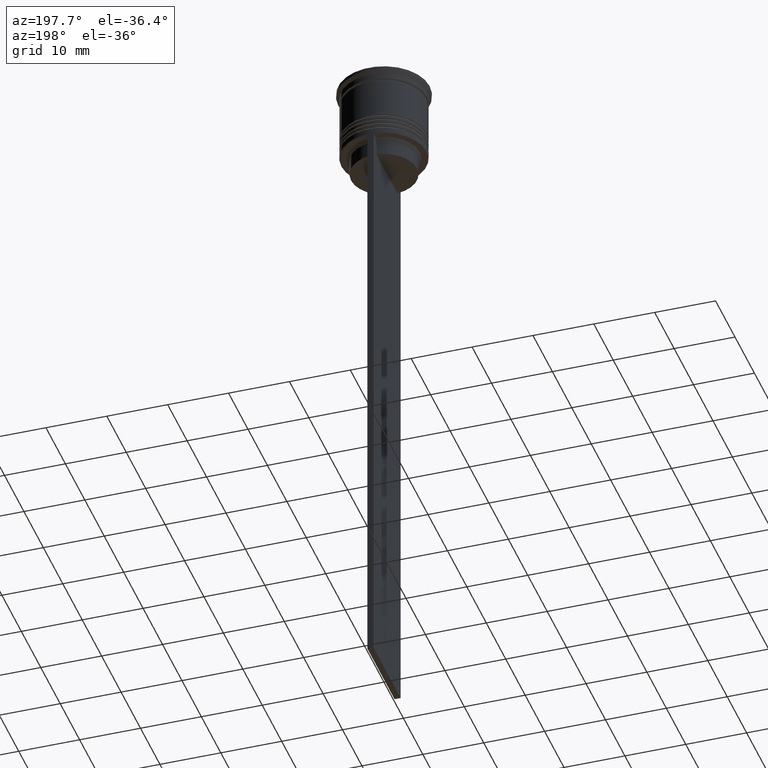
[diagram: clean part render]
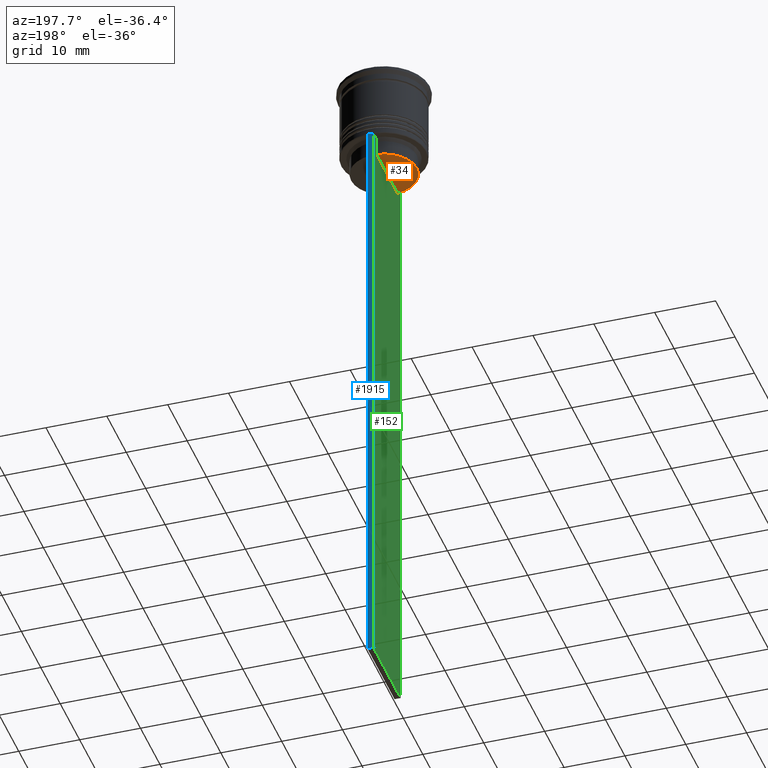
[diagram: same view with three faces highlighted in distinct colors, each labeled with its STEP entity id]
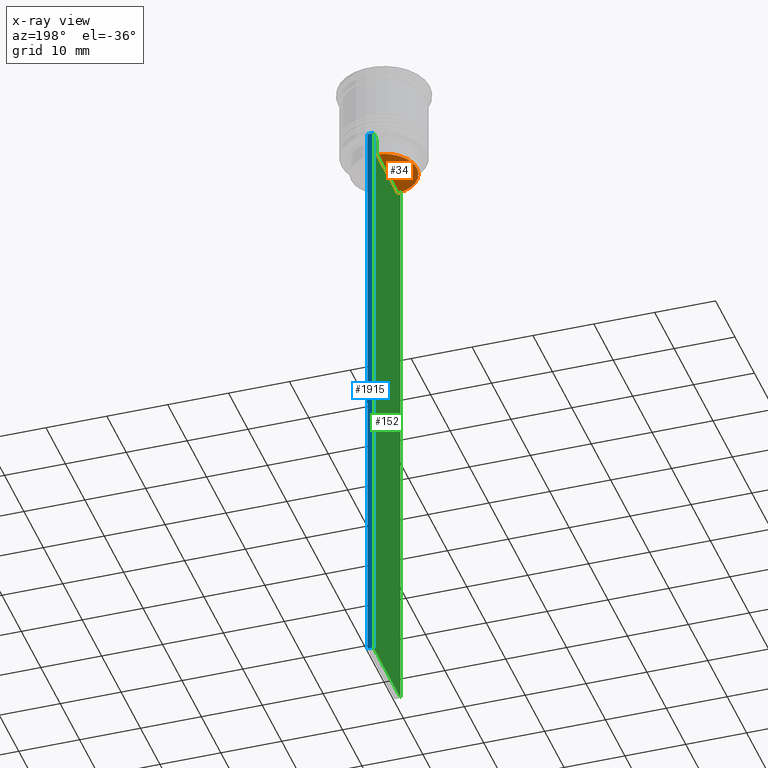
[diagram: x-ray of the same camera — body ghosted, the three highlighted faces saturated]
A machine part, auxiliary view with three faces highlighted in distinct colors.
The next image is the same camera in x-ray (body ghosted, the three faces saturated) — at least one of them is partly hidden behind the body in this view.
Their STEP definitions:

[orange] entity #34 — the highlighted planar face has unit normal (0, -0, 1).
#34 = ADVANCED_FACE ( 'NONE', ( #1687 ), #1894, .F. ) ;
#57 = VECTOR ( 'NONE', #350, 1000.000000000000000 ) ;
#177 = CIRCLE ( 'NONE', #2020, 5.400000000000003908 ) ;
#350 = DIRECTION ( 'NONE',  ( 0.000000000000000000, -1.000000000000000000, 0.000000000000000000 ) ) ;
#465 = DIRECTION ( 'NONE',  ( 1.000000000000000000, 0.000000000000000000, 0.000000000000000000 ) ) ;
#481 = DIRECTION ( 'NONE',  ( 0.000000000000000000, -0.000000000000000000, 1.000000000000000000 ) ) ;
#557 = ORIENTED_EDGE ( 'NONE', *, *, #2341, .T. ) ;
#608 = CARTESIAN_POINT ( 'NONE',  ( 0.000000000000000000, 0.000000000000000000, -15.50000000000000000 ) ) ;
#652 = VERTEX_POINT ( 'NONE', #1849 ) ;
#770 = CARTESIAN_POINT ( 'NONE',  ( -0.5000000000000000000, 5.400000000000003908, -15.50000000000000000 ) ) ;
#970 = EDGE_LOOP ( 'NONE', ( #1514, #557 ) ) ;
#1022 = CARTESIAN_POINT ( 'NONE',  ( 0.000000000000000000, 5.400000000000003908, -15.50000000000000000 ) ) ;
#1046 = DIRECTION ( 'NONE',  ( 1.000000000000000000, 0.000000000000000000, 0.000000000000000000 ) ) ;
#1514 = ORIENTED_EDGE ( 'NONE', *, *, #2415, .F. ) ;
#1687 = FACE_OUTER_BOUND ( 'NONE', #970, .T. ) ;
#1849 = CARTESIAN_POINT ( 'NONE',  ( -0.5000000000000000000, -5.376802023508029826, -15.50000000000000000 ) ) ;
#1894 = PLANE ( 'NONE',  #1962 ) ;
#1962 = AXIS2_PLACEMENT_3D ( 'NONE', #1022, #481, #1046 ) ;
#2020 = AXIS2_PLACEMENT_3D ( 'NONE', #608, #2333, #465 ) ;
#2142 = CARTESIAN_POINT ( 'NONE',  ( -0.5000000000000000000, 5.376802023508029826, -15.50000000000000000 ) ) ;
#2333 = DIRECTION ( 'NONE',  ( -0.000000000000000000, -0.000000000000000000, 1.000000000000000000 ) ) ;
#2341 = EDGE_CURVE ( 'NONE', #2429, #652, #2492, .T. ) ;
#2415 = EDGE_CURVE ( 'NONE', #2429, #652, #177, .T. ) ;
#2429 = VERTEX_POINT ( 'NONE', #2142 ) ;
#2492 = LINE ( 'NONE', #770, #57 ) ;

[blue] entity #1915 — the highlighted planar face has unit normal (0, -1, -0).
#2 = DIRECTION ( 'NONE',  ( 0.000000000000000000, -1.000000000000000000, -0.000000000000000000 ) ) ;
#114 = CARTESIAN_POINT ( 'NONE',  ( -0.5000000000000000000, 7.000000000000002665, -112.5000000000000000 ) ) ;
#182 = FACE_OUTER_BOUND ( 'NONE', #1377, .T. ) ;
#236 = VECTOR ( 'NONE', #1056, 1000.000000000000000 ) ;
#452 = EDGE_CURVE ( 'NONE', #2316, #495, #2380, .T. ) ;
#495 = VERTEX_POINT ( 'NONE', #507 ) ;
#507 = CARTESIAN_POINT ( 'NONE',  ( 0.5000000000000000000, 7.000000000000002665, -112.5000000000000000 ) ) ;
#512 = VERTEX_POINT ( 'NONE', #114 ) ;
#716 = EDGE_CURVE ( 'NONE', #495, #512, #1437, .T. ) ;
#739 = PLANE ( 'NONE',  #1769 ) ;
#755 = VECTOR ( 'NONE', #1800, 1000.000000000000000 ) ;
#805 = DIRECTION ( 'NONE',  ( 1.000000000000000000, 0.000000000000000000, 0.000000000000000000 ) ) ;
#840 = ORIENTED_EDGE ( 'NONE', *, *, #452, .T. ) ;
#951 = CARTESIAN_POINT ( 'NONE',  ( 0.5000000000000000000, 7.000000000000002665, 1.535668847618198329 ) ) ;
#1056 = DIRECTION ( 'NONE',  ( -1.000000000000000000, 0.000000000000000000, 0.000000000000000000 ) ) ;
#1156 = CARTESIAN_POINT ( 'NONE',  ( -0.5000000000000000000, 7.000000000000002665, 1.535668847618198329 ) ) ;
#1160 = LINE ( 'NONE', #1953, #1208 ) ;
#1208 = VECTOR ( 'NONE', #805, 1000.000000000000000 ) ;
#1321 = LINE ( 'NONE', #1156, #1718 ) ;
#1377 = EDGE_LOOP ( 'NONE', ( #2058, #1559, #840, #1896 ) ) ;
#1437 = LINE ( 'NONE', #2209, #236 ) ;
#1510 = CARTESIAN_POINT ( 'NONE',  ( 0.5000000000000000000, 7.000000000000002665, -12.50000000000000000 ) ) ;
#1552 = EDGE_CURVE ( 'NONE', #2111, #2316, #1160, .T. ) ;
#1559 = ORIENTED_EDGE ( 'NONE', *, *, #1552, .T. ) ;
#1590 = CARTESIAN_POINT ( 'NONE',  ( -0.5000000000000000000, 7.000000000000002665, -12.50000000000000000 ) ) ;
#1718 = VECTOR ( 'NONE', #2109, 1000.000000000000000 ) ;
#1722 = DIRECTION ( 'NONE',  ( 0.000000000000000000, 0.000000000000000000, -1.000000000000000000 ) ) ;
#1769 = AXIS2_PLACEMENT_3D ( 'NONE', #951, #2, #1722 ) ;
#1800 = DIRECTION ( 'NONE',  ( 0.000000000000000000, 0.000000000000000000, -1.000000000000000000 ) ) ;
#1876 = EDGE_CURVE ( 'NONE', #2111, #512, #1321, .T. ) ;
#1896 = ORIENTED_EDGE ( 'NONE', *, *, #716, .T. ) ;
#1915 = ADVANCED_FACE ( 'NONE', ( #182 ), #739, .F. ) ;
#1953 = CARTESIAN_POINT ( 'NONE',  ( 0.5000000000000000000, 7.000000000000002665, -12.50000000000000000 ) ) ;
#1996 = CARTESIAN_POINT ( 'NONE',  ( 0.5000000000000000000, 7.000000000000002665, 1.535668847618198329 ) ) ;
#2058 = ORIENTED_EDGE ( 'NONE', *, *, #1876, .F. ) ;
#2109 = DIRECTION ( 'NONE',  ( 0.000000000000000000, 0.000000000000000000, -1.000000000000000000 ) ) ;
#2111 = VERTEX_POINT ( 'NONE', #1590 ) ;
#2209 = CARTESIAN_POINT ( 'NONE',  ( 0.5000000000000000000, 7.000000000000002665, -112.5000000000000000 ) ) ;
#2316 = VERTEX_POINT ( 'NONE', #1510 ) ;
#2380 = LINE ( 'NONE', #1996, #755 ) ;

[green] entity #152 — the highlighted planar face has unit normal (-1, 0, 0).
#11 = LINE ( 'NONE', #2107, #2428 ) ;
#46 = CARTESIAN_POINT ( 'NONE',  ( -0.5000000000000000000, 5.376802023508029826, -13.00000000000000178 ) ) ;
#47 = ORIENTED_EDGE ( 'NONE', *, *, #2083, .F. ) ;
#57 = VECTOR ( 'NONE', #350, 1000.000000000000000 ) ;
#74 = CARTESIAN_POINT ( 'NONE',  ( -0.5000000000000000000, -6.999999999999997335, -12.50000000000000000 ) ) ;
#79 = VERTEX_POINT ( 'NONE', #74 ) ;
#81 = LINE ( 'NONE', #851, #1789 ) ;
#114 = CARTESIAN_POINT ( 'NONE',  ( -0.5000000000000000000, 7.000000000000002665, -112.5000000000000000 ) ) ;
#124 = VERTEX_POINT ( 'NONE', #1749 ) ;
#152 = ADVANCED_FACE ( 'NONE', ( #600 ), #373, .T. ) ;
#186 = CARTESIAN_POINT ( 'NONE',  ( -0.5000000000000000000, -6.999999999999997335, -12.50000000000000000 ) ) ;
#205 = VERTEX_POINT ( 'NONE', #2081 ) ;
#222 = LINE ( 'NONE', #988, #1848 ) ;
#235 = CARTESIAN_POINT ( 'NONE',  ( -0.5000000000000000000, 5.711478846560141598, -12.66669470477064685 ) ) ;
#238 = EDGE_CURVE ( 'NONE', #2304, #205, #2128, .T. ) ;
#253 = VECTOR ( 'NONE', #2258, 1000.000000000000000 ) ;
#262 = DIRECTION ( 'NONE',  ( -0.000000000000000000, -0.000000000000000000, 1.000000000000000000 ) ) ;
#272 = LINE ( 'NONE', #1298, #253 ) ;
#305 = CARTESIAN_POINT ( 'NONE',  ( -0.5000000000000000000, -5.376802023508029826, -13.00000000000000178 ) ) ;
#350 = DIRECTION ( 'NONE',  ( 0.000000000000000000, -1.000000000000000000, 0.000000000000000000 ) ) ;
#366 = CARTESIAN_POINT ( 'NONE',  ( -0.5000000000000000000, 5.376802023508029826, -13.00000000000000178 ) ) ;
#373 = PLANE ( 'NONE',  #651 ) ;
#432 = DIRECTION ( 'NONE',  ( 0.000000000000000000, -1.000000000000000000, 0.000000000000000000 ) ) ;
#443 = EDGE_CURVE ( 'NONE', #2111, #546, #81, .T. ) ;
#445 = ORIENTED_EDGE ( 'NONE', *, *, #2341, .F. ) ;
#496 = B_SPLINE_CURVE_WITH_KNOTS ( 'NONE', 3,
 ( #1770, #235, #1750, #46 ),
 .UNSPECIFIED., .F., .F.,
 ( 4, 4 ),
 ( 0.01003009312103698807, 0.01073859663834952557 ),
 .UNSPECIFIED. ) ;
#508 = VERTEX_POINT ( 'NONE', #2182 ) ;
#512 = VERTEX_POINT ( 'NONE', #114 ) ;
#528 = ORIENTED_EDGE ( 'NONE', *, *, #1599, .F. ) ;
#545 = ORIENTED_EDGE ( 'NONE', *, *, #1449, .F. ) ;
#546 = VERTEX_POINT ( 'NONE', #1868 ) ;
#556 = EDGE_CURVE ( 'NONE', #124, #2304, #2426, .T. ) ;
#559 = CARTESIAN_POINT ( 'NONE',  ( -0.5000000000000000000, -5.878775382679629402, -12.50000000000000000 ) ) ;
#600 = FACE_OUTER_BOUND ( 'NONE', #1587, .T. ) ;
#619 = ORIENTED_EDGE ( 'NONE', *, *, #556, .F. ) ;
#651 = AXIS2_PLACEMENT_3D ( 'NONE', #1736, #2295, #952 ) ;
#652 = VERTEX_POINT ( 'NONE', #1849 ) ;
#655 = CARTESIAN_POINT ( 'NONE',  ( -0.5000000000000000000, -5.544156999454441959, -12.83336396790503642 ) ) ;
#770 = CARTESIAN_POINT ( 'NONE',  ( -0.5000000000000000000, 5.400000000000003908, -15.50000000000000000 ) ) ;
#774 = VECTOR ( 'NONE', #432, 1000.000000000000000 ) ;
#802 = VERTEX_POINT ( 'NONE', #1132 ) ;
#835 = CARTESIAN_POINT ( 'NONE',  ( -0.5000000000000000000, -5.711478856069293286, -12.66669469529570335 ) ) ;
#851 = CARTESIAN_POINT ( 'NONE',  ( -0.5000000000000000000, -6.999999999999997335, -12.50000000000000000 ) ) ;
#901 = EDGE_CURVE ( 'NONE', #652, #124, #1204, .T. ) ;
#920 = VECTOR ( 'NONE', #262, 1000.000000000000000 ) ;
#926 = CARTESIAN_POINT ( 'NONE',  ( -0.5000000000000000000, -6.999999999999997335, -12.50000000000000000 ) ) ;
#952 = DIRECTION ( 'NONE',  ( 0.000000000000000000, 0.000000000000000000, 1.000000000000000000 ) ) ;
#988 = CARTESIAN_POINT ( 'NONE',  ( -0.5000000000000000000, -6.999999999999997335, -112.5000000000000000 ) ) ;
#1010 = DIRECTION ( 'NONE',  ( 0.000000000000000000, 1.000000000000000000, 0.000000000000000000 ) ) ;
#1011 = VECTOR ( 'NONE', #1530, 1000.000000000000000 ) ;
#1039 = ORIENTED_EDGE ( 'NONE', *, *, #443, .F. ) ;
#1132 = CARTESIAN_POINT ( 'NONE',  ( -0.5000000000000000000, -6.999999999999997335, -112.5000000000000000 ) ) ;
#1156 = CARTESIAN_POINT ( 'NONE',  ( -0.5000000000000000000, 7.000000000000002665, 1.535668847618198329 ) ) ;
#1178 = ORIENTED_EDGE ( 'NONE', *, *, #2294, .F. ) ;
#1204 = LINE ( 'NONE', #1974, #920 ) ;
#1268 = ORIENTED_EDGE ( 'NONE', *, *, #238, .F. ) ;
#1298 = CARTESIAN_POINT ( 'NONE',  ( -0.5000000000000000000, 5.376802023508029826, 0.000000000000000000 ) ) ;
#1321 = LINE ( 'NONE', #1156, #1718 ) ;
#1355 = CARTESIAN_POINT ( 'NONE',  ( -0.5000000000000000000, -6.999999999999997335, -12.50000000000000000 ) ) ;
#1365 = ORIENTED_EDGE ( 'NONE', *, *, #1421, .F. ) ;
#1421 = EDGE_CURVE ( 'NONE', #2286, #2429, #272, .T. ) ;
#1449 = EDGE_CURVE ( 'NONE', #546, #508, #2074, .T. ) ;
#1530 = DIRECTION ( 'NONE',  ( 0.000000000000000000, -1.000000000000000000, 0.000000000000000000 ) ) ;
#1587 = EDGE_LOOP ( 'NONE', ( #1959, #545, #1039, #2092, #47, #1178, #528, #1268, #619, #2129, #445, #1365 ) ) ;
#1590 = CARTESIAN_POINT ( 'NONE',  ( -0.5000000000000000000, 7.000000000000002665, -12.50000000000000000 ) ) ;
#1599 = EDGE_CURVE ( 'NONE', #205, #79, #2122, .T. ) ;
#1600 = CARTESIAN_POINT ( 'NONE',  ( -0.5000000000000000000, -5.878775382679629402, -12.50000000000000000 ) ) ;
#1603 = DIRECTION ( 'NONE',  ( 0.000000000000000000, -1.000000000000000000, 0.000000000000000000 ) ) ;
#1718 = VECTOR ( 'NONE', #2109, 1000.000000000000000 ) ;
#1736 = CARTESIAN_POINT ( 'NONE',  ( -0.5000000000000000000, -6.999999999999997335, 1.535668847618198329 ) ) ;
#1749 = CARTESIAN_POINT ( 'NONE',  ( -0.5000000000000000000, -5.376802023508029826, -13.00000000000000178 ) ) ;
#1750 = CARTESIAN_POINT ( 'NONE',  ( -0.5000000000000000000, 5.544156989057553275, -12.83336397825725861 ) ) ;
#1770 = CARTESIAN_POINT ( 'NONE',  ( -0.5000000000000000000, 5.878775382679629402, -12.50000000000000000 ) ) ;
#1789 = VECTOR ( 'NONE', #1603, 1000.000000000000000 ) ;
#1848 = VECTOR ( 'NONE', #1010, 1000.000000000000000 ) ;
#1849 = CARTESIAN_POINT ( 'NONE',  ( -0.5000000000000000000, -5.376802023508029826, -15.50000000000000000 ) ) ;
#1868 = CARTESIAN_POINT ( 'NONE',  ( -0.5000000000000000000, 6.881860213634102053, -12.50000000000000000 ) ) ;
#1874 = DIRECTION ( 'NONE',  ( 0.000000000000000000, 0.000000000000000000, -1.000000000000000000 ) ) ;
#1876 = EDGE_CURVE ( 'NONE', #2111, #512, #1321, .T. ) ;
#1905 = VECTOR ( 'NONE', #1958, 1000.000000000000000 ) ;
#1958 = DIRECTION ( 'NONE',  ( 0.000000000000000000, -1.000000000000000000, 0.000000000000000000 ) ) ;
#1959 = ORIENTED_EDGE ( 'NONE', *, *, #2094, .F. ) ;
#1974 = CARTESIAN_POINT ( 'NONE',  ( -0.5000000000000000000, -5.376802023508029826, 0.000000000000000000 ) ) ;
#2074 = LINE ( 'NONE', #186, #1011 ) ;
#2081 = CARTESIAN_POINT ( 'NONE',  ( -0.5000000000000000000, -6.881860213634102053, -12.50000000000000000 ) ) ;
#2083 = EDGE_CURVE ( 'NONE', #802, #512, #222, .T. ) ;
#2092 = ORIENTED_EDGE ( 'NONE', *, *, #1876, .T. ) ;
#2094 = EDGE_CURVE ( 'NONE', #508, #2286, #496, .T. ) ;
#2107 = CARTESIAN_POINT ( 'NONE',  ( -0.5000000000000000000, -6.999999999999997335, 1.535668847618198329 ) ) ;
#2109 = DIRECTION ( 'NONE',  ( 0.000000000000000000, 0.000000000000000000, -1.000000000000000000 ) ) ;
#2111 = VERTEX_POINT ( 'NONE', #1590 ) ;
#2122 = LINE ( 'NONE', #1355, #774 ) ;
#2128 = LINE ( 'NONE', #926, #1905 ) ;
#2129 = ORIENTED_EDGE ( 'NONE', *, *, #901, .F. ) ;
#2142 = CARTESIAN_POINT ( 'NONE',  ( -0.5000000000000000000, 5.376802023508029826, -15.50000000000000000 ) ) ;
#2182 = CARTESIAN_POINT ( 'NONE',  ( -0.5000000000000000000, 5.878775382679629402, -12.50000000000000000 ) ) ;
#2258 = DIRECTION ( 'NONE',  ( 0.000000000000000000, 0.000000000000000000, -1.000000000000000000 ) ) ;
#2286 = VERTEX_POINT ( 'NONE', #366 ) ;
#2294 = EDGE_CURVE ( 'NONE', #79, #802, #11, .T. ) ;
#2295 = DIRECTION ( 'NONE',  ( -1.000000000000000000, 0.000000000000000000, 0.000000000000000000 ) ) ;
#2304 = VERTEX_POINT ( 'NONE', #559 ) ;
#2341 = EDGE_CURVE ( 'NONE', #2429, #652, #2492, .T. ) ;
#2426 = B_SPLINE_CURVE_WITH_KNOTS ( 'NONE', 3,
 ( #305, #655, #835, #1600 ),
 .UNSPECIFIED., .F., .F.,
 ( 4, 4 ),
 ( 0.02539176325380714666, 0.02610162431828674801 ),
 .UNSPECIFIED. ) ;
#2428 = VECTOR ( 'NONE', #1874, 1000.000000000000000 ) ;
#2429 = VERTEX_POINT ( 'NONE', #2142 ) ;
#2492 = LINE ( 'NONE', #770, #57 ) ;